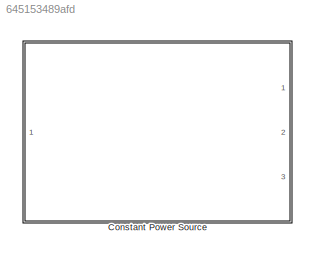
MODEL slx_645153489afd
KIND library
CONFIG AbsTol = auto
CONFIG EnableMultiTasking = off
CONFIG FixedStep = auto
CONFIG MaxStep = auto
CONFIG MinStep = auto
CONFIG RelTol = 1e-3
CONFIG SampleTimeConstraint = Unconstrained
CONFIG Solver = VariableStepAuto
CONFIG SolverName = VariableStepAuto
CONFIG StartTime = 0.0
CONFIG StopTime = 10.0
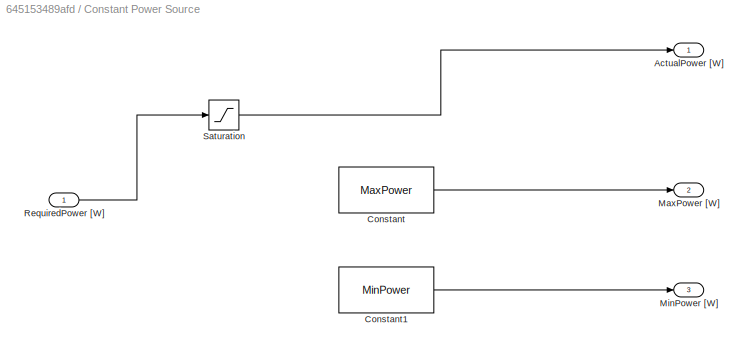
BLOCK [SubSystem] Constant Power Source
  Ports = [1, 3]
  RequestExecContextInheritance = off
BLOCK [Outport] Constant Power Source/ActualPower [W]
  IconDisplay = Port number
  SampleTime = GlobalSampleTime
BLOCK [Constant] Constant Power Source/Constant
  Value = MaxPower
BLOCK [Constant] Constant Power Source/Constant1
  Value = MinPower
BLOCK [Outport] Constant Power Source/MaxPower [W]
  IconDisplay = Port number
  Port = 2
  SampleTime = GlobalSampleTime
BLOCK [Outport] Constant Power Source/MinPower [W]
  IconDisplay = Port number
  Port = 3
  SampleTime = GlobalSampleTime
BLOCK [Inport] Constant Power Source/RequiredPower [W]
  IconDisplay = Port number
  SampleTime = LocalSampleTime
BLOCK [Saturate] Constant Power Source/Saturation
  InputPortMap = u0
  LowerLimit = MinPower
  Ports = [1, 1]
  UpperLimit = MaxPower
LINE Constant Power Source/Constant1:1 -> Constant Power Source/MinPower [W]:1
LINE Constant Power Source/Constant:1 -> Constant Power Source/MaxPower [W]:1
LINE Constant Power Source/RequiredPower [W]:1 -> Constant Power Source/Saturation:1
LINE Constant Power Source/Saturation:1 -> Constant Power Source/ActualPower [W]:1
